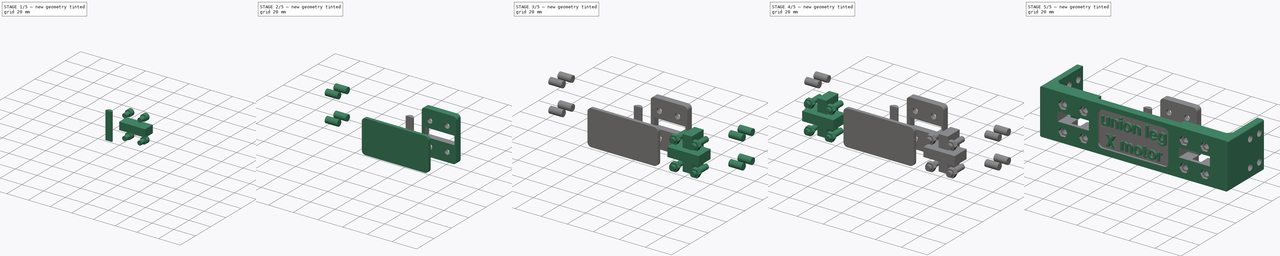
[diagram: build sequence overview — one tinted view per stage of 5, left to right]
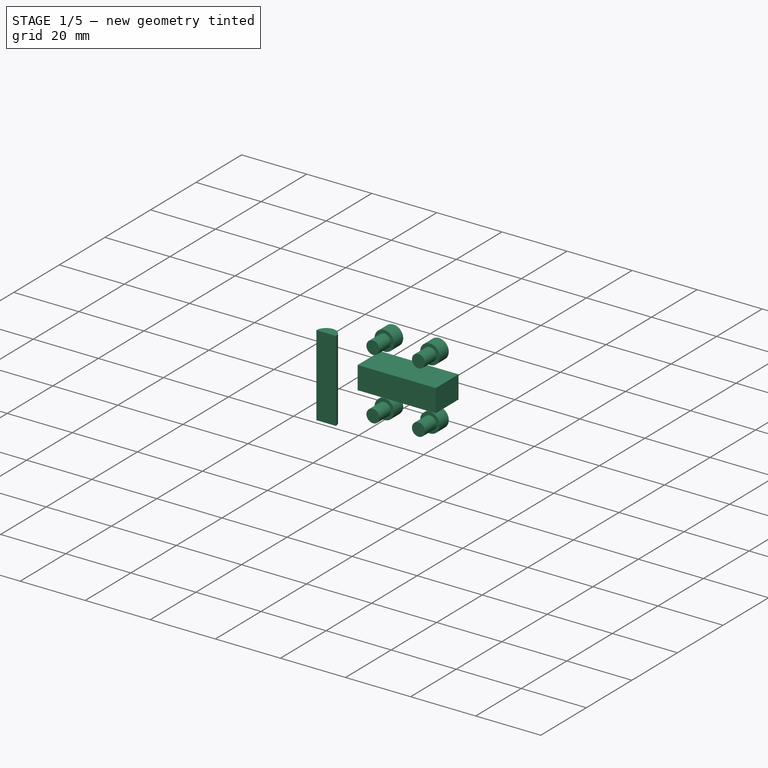
[diagram: stage 1 of 5 — iso view after this stage's code; geometry added in this stage tinted green]
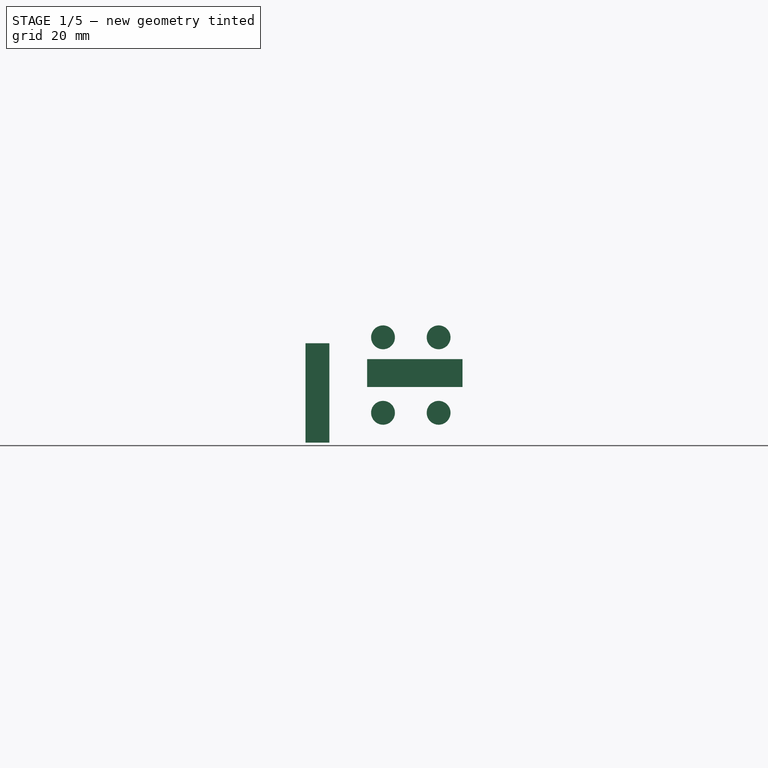
[diagram: stage 1 of 5 — front view after this stage's code; geometry added in this stage tinted green]
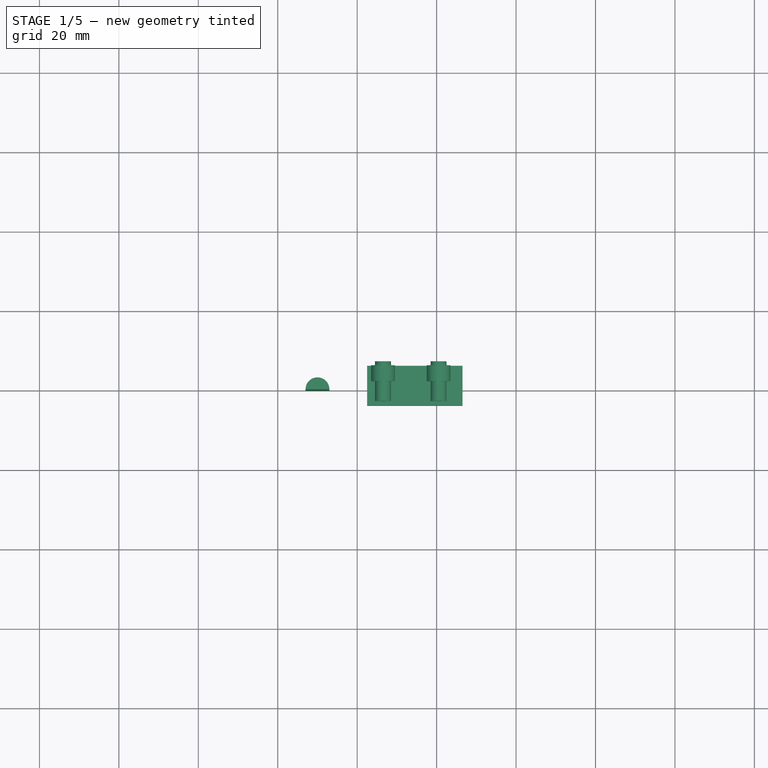
[diagram: stage 1 of 5 — top view after this stage's code; geometry added in this stage tinted green]
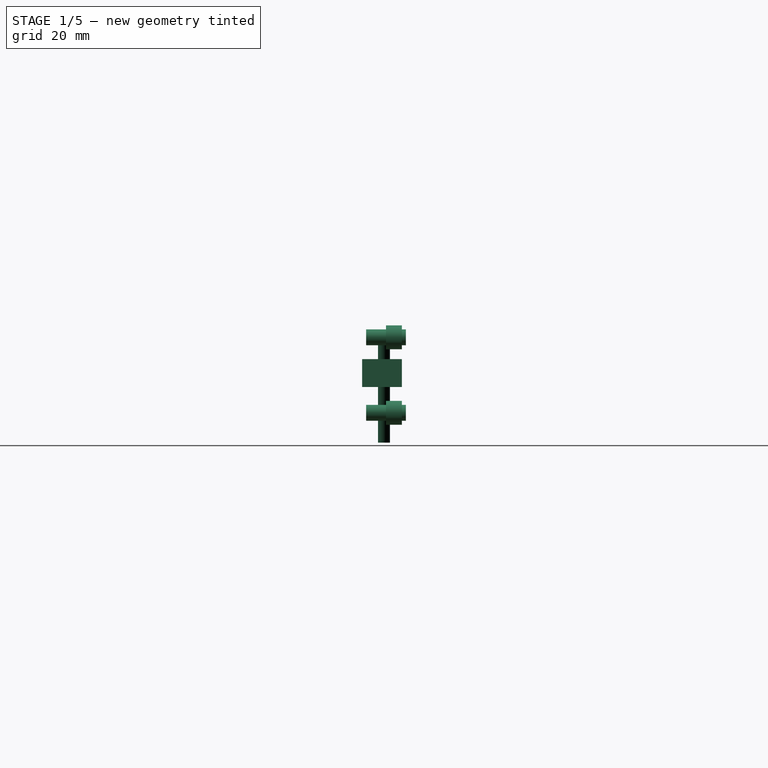
[diagram: stage 1 of 5 — right view after this stage's code; geometry added in this stage tinted green]
FCSTD DOCUMENT  (FreeCAD 0.14R3702 (Git))
Label: union_leg_xmotor
License: CC-BY 3.0
LicenseURL: http://creativecommons.org/licenses/by/3.0/
objects: Part::FeaturePython×8, Part::Box×7, Part::Cylinder×6, Part::MultiFuse×5, Part::Extrusion×4, Part::Fillet×3, Part::Part2DObjectPython×2, Part::Cut×2, Sketcher::SketchObject×1, Part::RegularPolygon×1, Part::Chamfer×1
note: 40 computed .brp shape members not serialized (recipe doc carries the construction recipe); baked Part::Feature solids carry a one-line shape summary decoded from their .brp

FEATURE [Part::Cylinder] Cylinder003  label="Cylinder001"
  Angle = 360
  Height = 10
  Placement = pos=(6.5,7,7.5) rot=(1,0,0;1.5708rad)
  Radius = 2
FEATURE [Part::FeaturePython] Array006  label="h_bolts_tap"  # Draft array (typed FeaturePython)
  Angle = 360
  ArrayType = 0
  Axis = (0,0,1)
  Base = -> Cylinder003
  Center = (0,0,0)
  IntervalX = (14,0,0)
  IntervalY = (0,1,0)
  IntervalZ = (0,0,19)
  NumberPolar = 1
  NumberX = 2
  NumberY = 1
  NumberZ = 2
FEATURE [Part::Box] Box007  label="h_groove_bearing_tap"
  Height = 7
  Length = 24
  Placement = pos=(2.5,-4,14) rot=(0,0,1;0rad)
  Width = 10
FEATURE [Part::Cylinder] Cylinder004  label="Cylinder002"
  Angle = 360
  Height = 4
  Placement = pos=(6.5,6,7.5) rot=(1,0,0;1.5708rad)
  Radius = 3
FEATURE [Part::FeaturePython] Array007  label="h_groove_bolts_tap"  # Draft array (typed FeaturePython)
  Angle = 360
  ArrayType = 0
  Axis = (0,0,1)
  Base = -> Cylinder004
  Center = (0,0,0)
  IntervalX = (14,0,0)
  IntervalY = (0,1,0)
  IntervalZ = (0,0,19)
  NumberPolar = 1
  NumberX = 2
  NumberY = 1
  NumberZ = 2
FEATURE [Part::MultiFuse] Fusion004  label="h_base_tap"
  Shapes = -> [Array007,Array006,Box007]
FEATURE [Part::Cylinder] Cylinder005  label="s_bearing_axis"
  Angle = 180
  Height = 25
  Placement = pos=(-10,0,0) rot=(0,0,1;0rad)
  Radius = 3
note: 2 file-system paths scrubbed to <path> (originals preserved in the JSON sidecar)
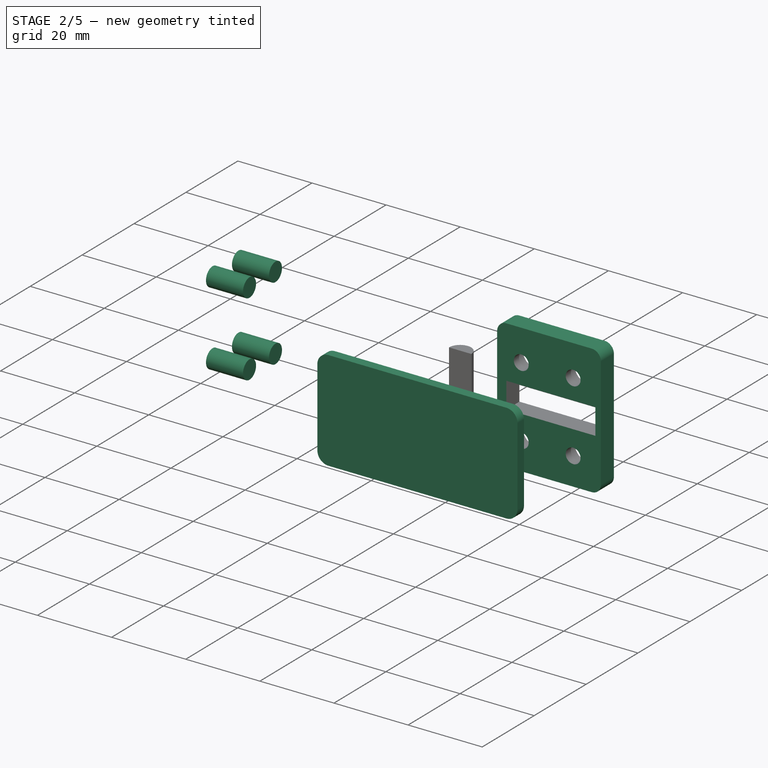
[diagram: stage 2 of 5 — iso view after this stage's code; geometry added in this stage tinted green]
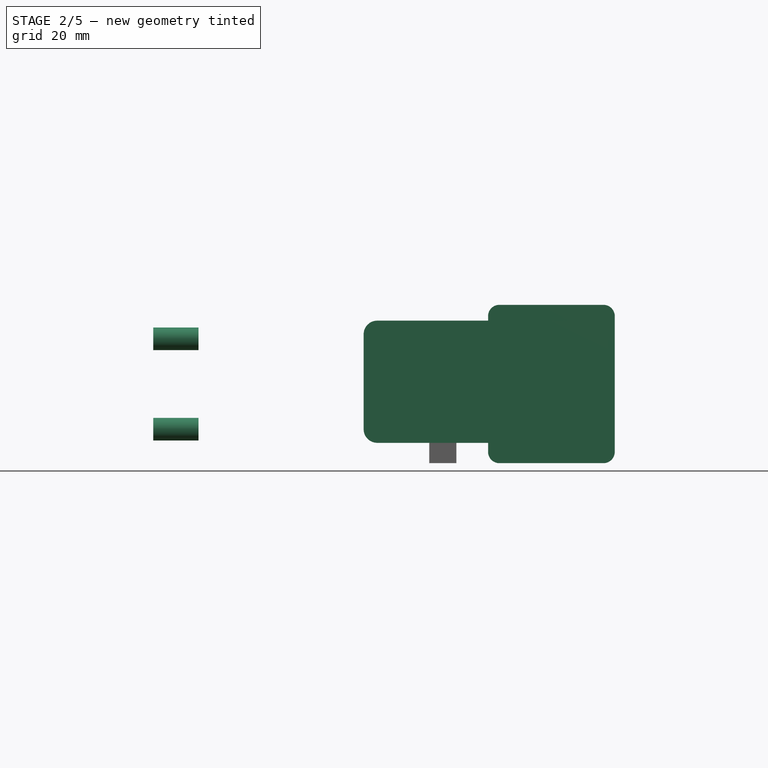
[diagram: stage 2 of 5 — front view after this stage's code; geometry added in this stage tinted green]
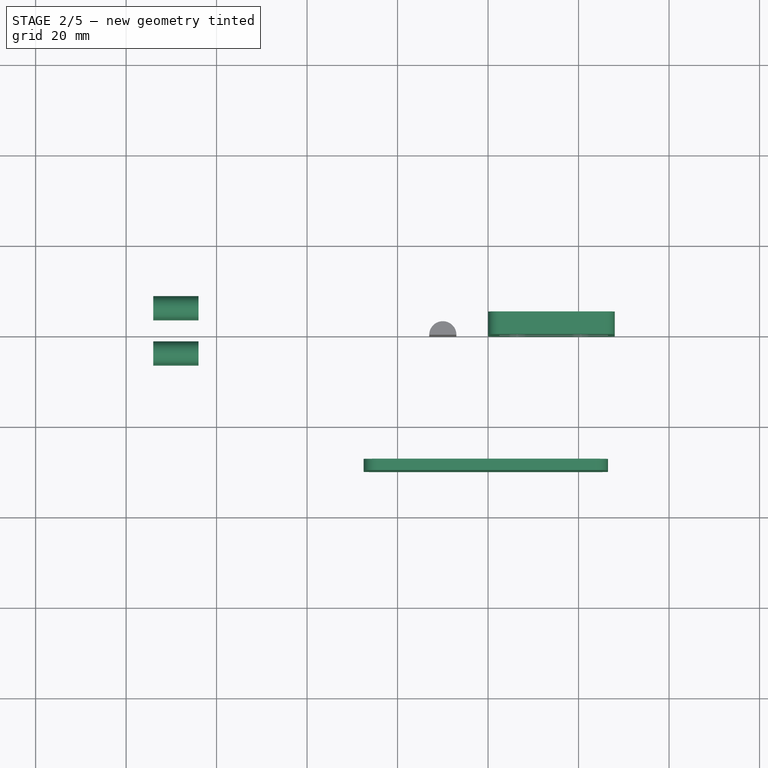
[diagram: stage 2 of 5 — top view after this stage's code; geometry added in this stage tinted green]
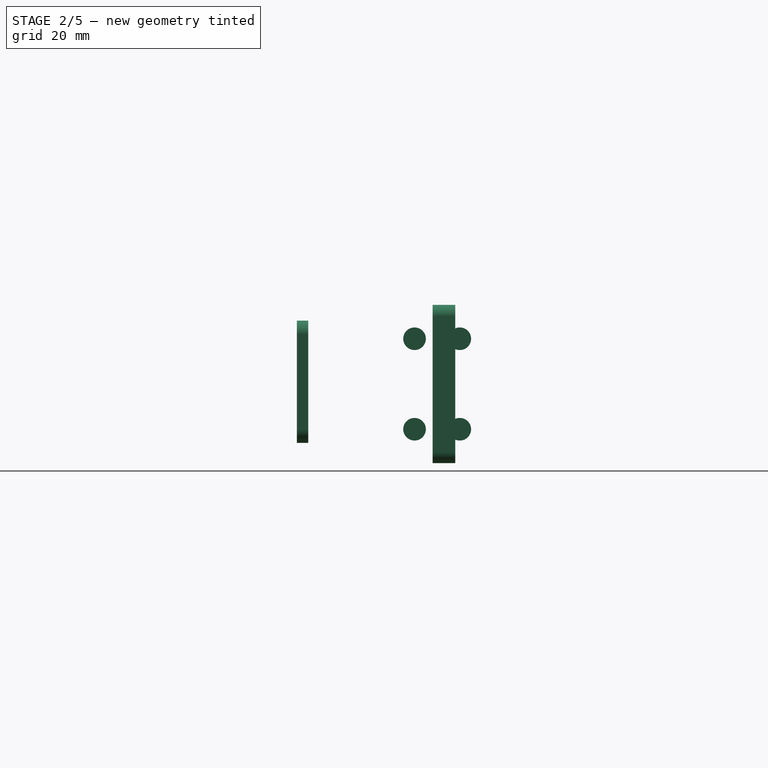
[diagram: stage 2 of 5 — right view after this stage's code; geometry added in this stage tinted green]
FEATURE [Part::Cylinder] Cylinder002  label="h_bolt_union001"
  Angle = 360
  Height = 10
  Placement = pos=(64,6,7.5) rot=(0,1,0;1.5708rad)
  Radius = 2.5
FEATURE [Part::FeaturePython] Array005  label="h_bolt_union_arr001"  # Draft array (typed FeaturePython)
  Angle = 360
  ArrayType = 0
  Axis = (0,0,1)
  Base = -> Cylinder002
  Center = (0,0,0)
  IntervalX = (1,0,0)
  IntervalY = (0,-10,0)
  IntervalZ = (0,0,20)
  NumberPolar = 1
  NumberX = 1
  NumberY = 2
  NumberZ = 2
  Placement = pos=(-138,0,0) rot=(0,0,1;0rad)
FEATURE [Part::Box] Box005  label="Cube"
  Height = 27
  Length = 54
  Placement = pos=(-27.5,-30,4.5) rot=(0,0,1;0rad)
  Width = 2.5
FEATURE [Part::Fillet] Fillet  label="h_txt_groove"
  Base = -> Box005
  Edges = 4 edges r=3: [Edge2,Edge4,Edge6,Edge8]
FEATURE [Part::Box] Box006  label="s_base_tap"
  Height = 35
  Length = 28
  Width = 5
FEATURE [Part::Cut] Cut001
  Base = -> Box006
  Tool = -> Fusion004
FEATURE [Part::Fillet] Fillet002  label="bearing_tap"
  Base = -> Cut001
  Edges = 4 edges r=2.5: [Edge2,Edge4,Edge17,Edge28]
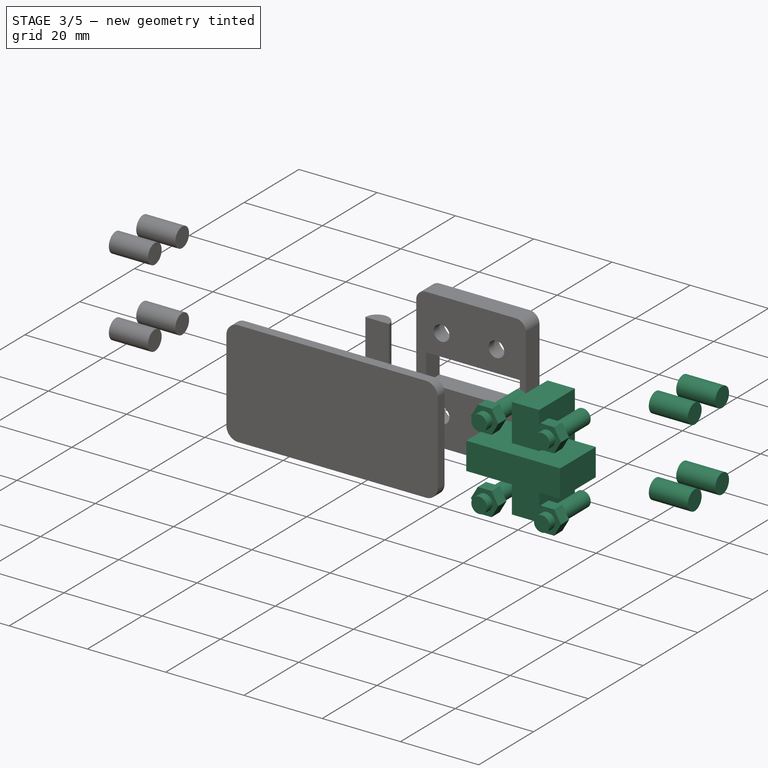
[diagram: stage 3 of 5 — iso view after this stage's code; geometry added in this stage tinted green]
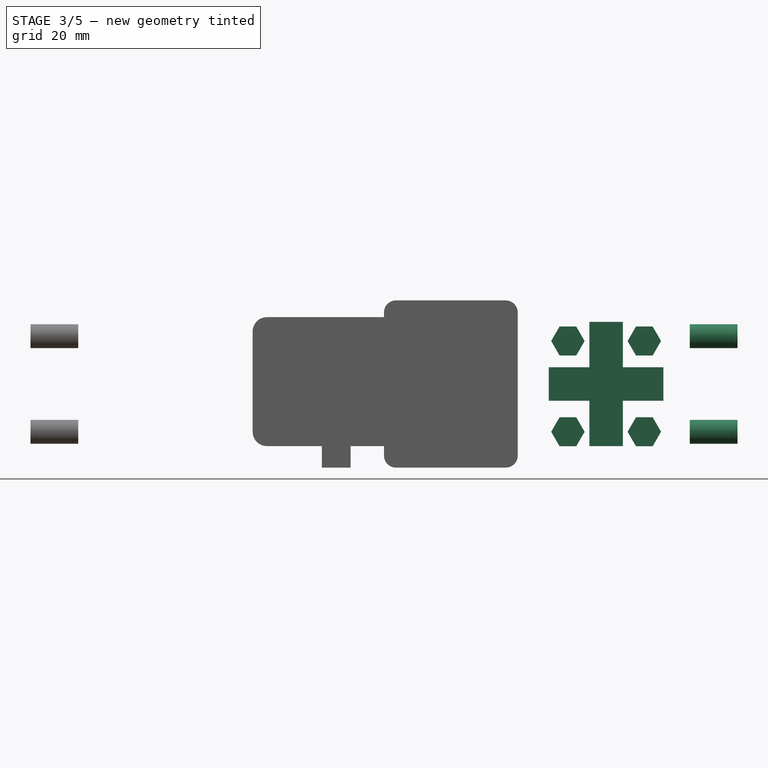
[diagram: stage 3 of 5 — front view after this stage's code; geometry added in this stage tinted green]
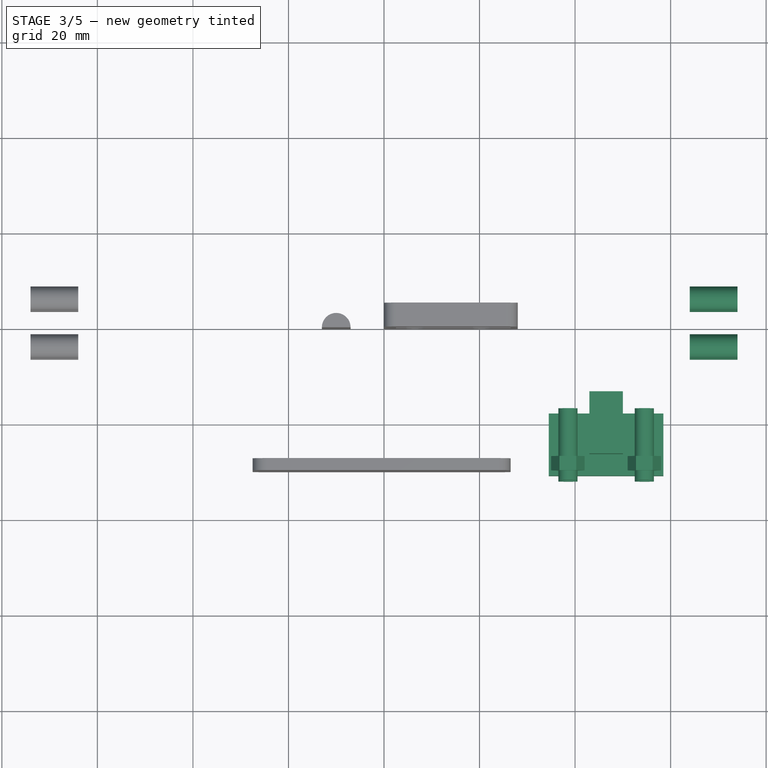
[diagram: stage 3 of 5 — top view after this stage's code; geometry added in this stage tinted green]
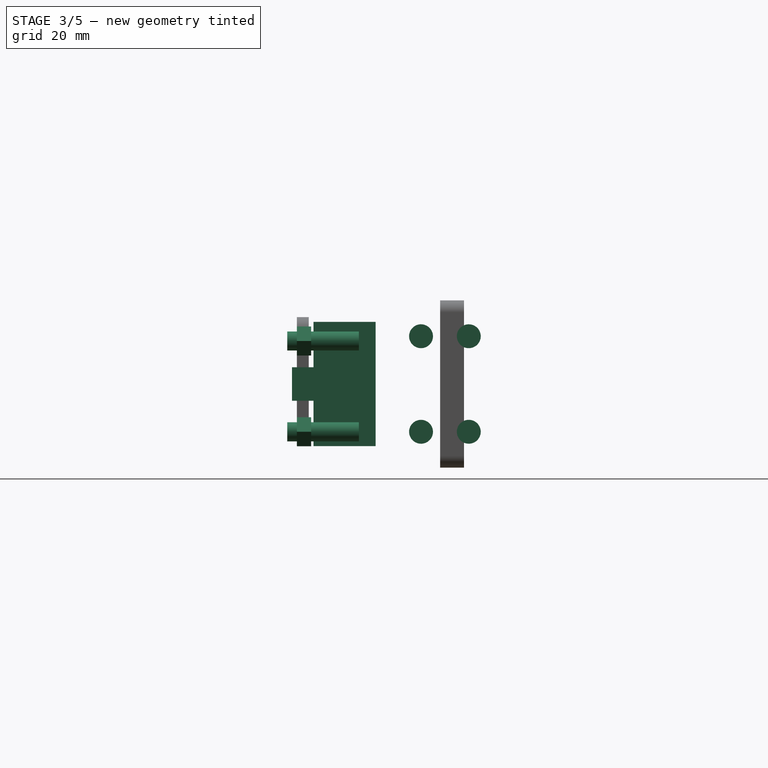
[diagram: stage 3 of 5 — right view after this stage's code; geometry added in this stage tinted green]
FEATURE [Part::Cylinder] Cylinder
  Angle = 360
  Height = 15
  Placement = pos=(38.5,-17,7.5) rot=(1,0,0;1.5708rad)
  Radius = 2
FEATURE [Part::RegularPolygon] RegularPolygon001  label="Regular polygon001"
  Circumradius = 3.5
  Placement = pos=(38.5,-30,7.5) rot=(1,0,0;1.5708rad)
  Polygon = 6
FEATURE [Part::Extrusion] Extrude002  label="h_nut_bearing"
  Base = -> RegularPolygon001
  Dir = (0,3,0)
  Solid = true
FEATURE [Part::Box] Box  label="h_bearing004"
  Height = 7
  Length = 24
  Placement = pos=(34.5,-31,14) rot=(0,0,1;0rad)
  Width = 13
FEATURE [Part::Box] Box004  label="h_bearing005"
  Height = 7
  Length = 26
  Placement = pos=(43,-26.5,30.5) rot=(0,1,0;1.5708rad)
  Width = 13
FEATURE [Part::FeaturePython] Array002  label="h_bolts_bearing002"  # Draft array (typed FeaturePython)
  Angle = 360
  ArrayType = 0
  Axis = (0,0,1)
  Base = -> Cylinder
  Center = (0,0,0)
  IntervalX = (16,0,0)
  IntervalY = (0,1,0)
  IntervalZ = (0,0,19)
  NumberPolar = 1
  NumberX = 2
  NumberY = 1
  NumberZ = 2
FEATURE [Part::FeaturePython] Array003  label="h_nut001"  # Draft array (typed FeaturePython)
  Angle = 360
  ArrayType = 0
  Axis = (0,0,1)
  Base = -> Extrude002
  Center = (0,0,0)
  IntervalX = (16,0,0)
  IntervalY = (0,1,0)
  IntervalZ = (0,0,19)
  NumberPolar = 1
  NumberX = 2
  NumberY = 1
  NumberZ = 2
FEATURE [Part::Cylinder] Cylinder001  label="h_bolt_union"
  Angle = 360
  Height = 10
  Placement = pos=(64,6,7.5) rot=(0,1,0;1.5708rad)
  Radius = 2.5
FEATURE [Part::FeaturePython] Array004  label="h_bolt_union_arr"  # Draft array (typed FeaturePython)
  Angle = 360
  ArrayType = 0
  Axis = (0,0,1)
  Base = -> Cylinder001
  Center = (0,0,0)
  IntervalX = (1,0,0)
  IntervalY = (0,-10,0)
  IntervalZ = (0,0,20)
  NumberPolar = 1
  NumberX = 1
  NumberY = 2
  NumberZ = 2
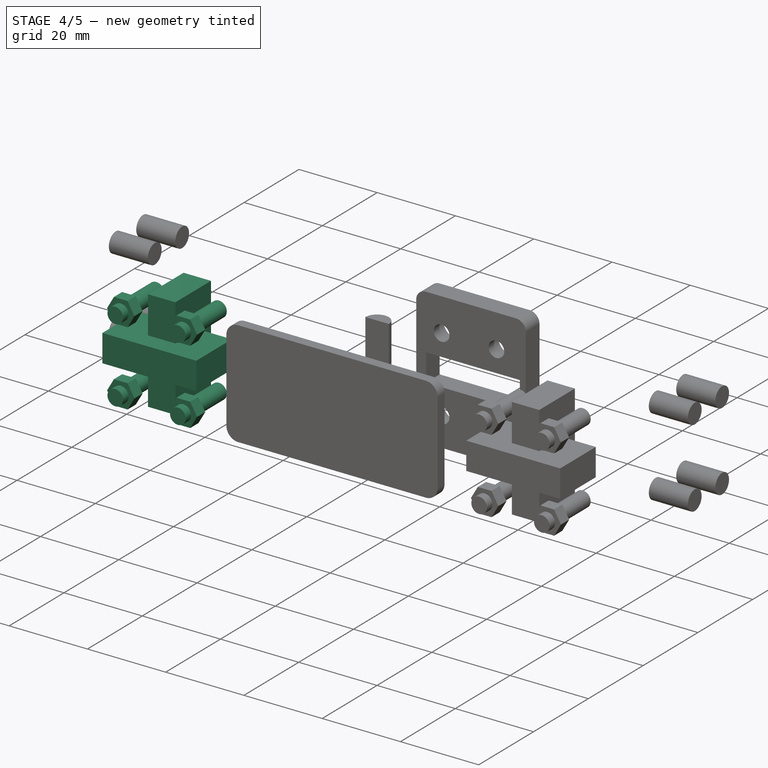
[diagram: stage 4 of 5 — iso view after this stage's code; geometry added in this stage tinted green]
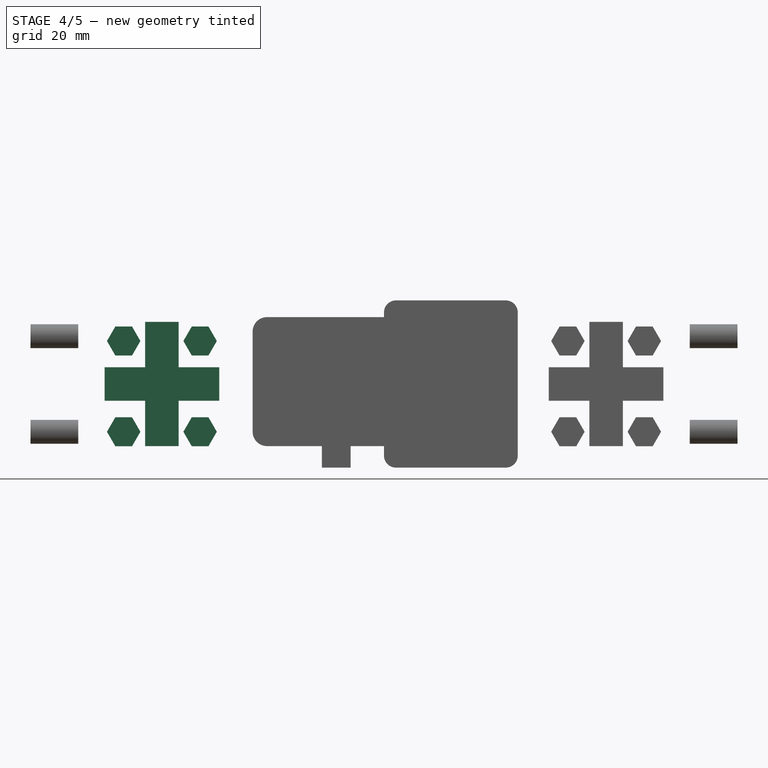
[diagram: stage 4 of 5 — front view after this stage's code; geometry added in this stage tinted green]
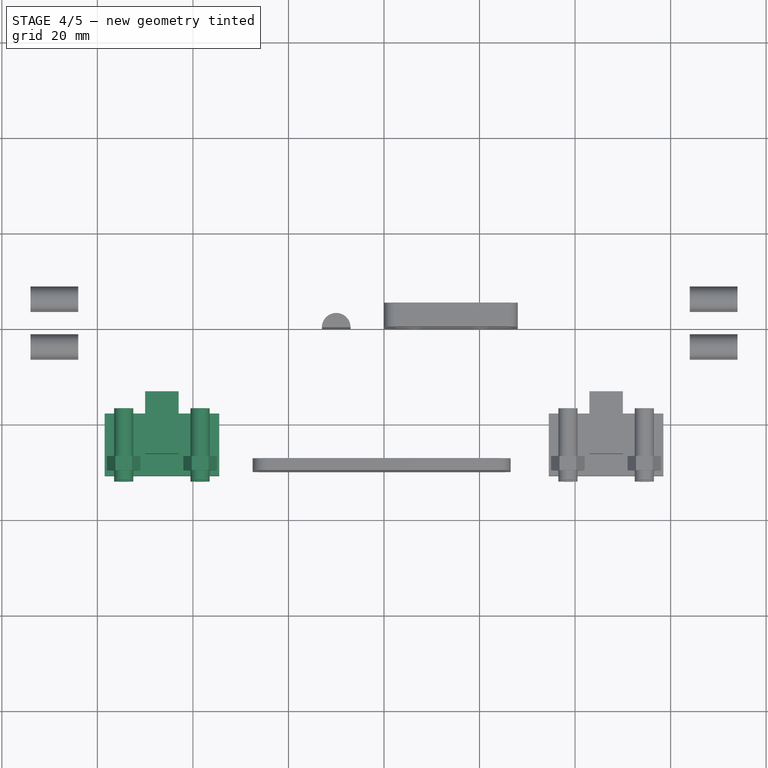
[diagram: stage 4 of 5 — top view after this stage's code; geometry added in this stage tinted green]
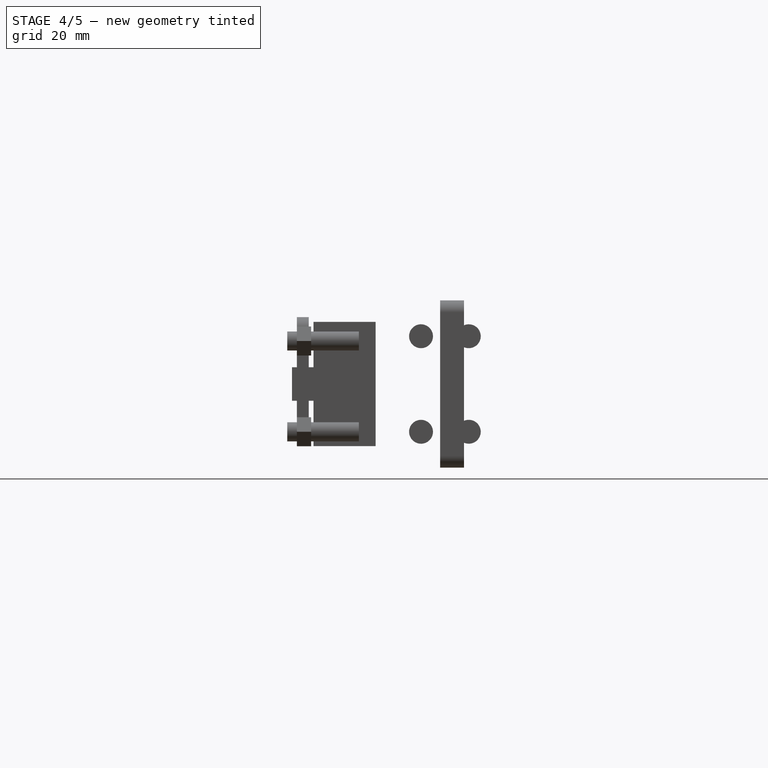
[diagram: stage 4 of 5 — right view after this stage's code; geometry added in this stage tinted green]
FEATURE [Part::Box] Box002  label="h_bearing002"
  Height = 7
  Length = 26
  Placement = pos=(43,-26.5,30.5) rot=(0,1,0;1.5708rad)
  Width = 13
FEATURE [Part::Box] Box003  label="h_bearing003"
  Height = 7
  Length = 24
  Placement = pos=(34.5,-31,14) rot=(0,0,1;0rad)
  Width = 13
FEATURE [Part::FeaturePython] Array001  label="h_bolts_bearing001"  # Draft array (typed FeaturePython)
  Angle = 360
  ArrayType = 0
  Axis = (0,0,1)
  Base = -> Cylinder
  Center = (0,0,0)
  IntervalX = (16,0,0)
  IntervalY = (0,1,0)
  IntervalZ = (0,0,19)
  NumberPolar = 1
  NumberX = 2
  NumberY = 1
  NumberZ = 2
FEATURE [Part::FeaturePython] Array  label="h_nut"  # Draft array (typed FeaturePython)
  Angle = 360
  ArrayType = 0
  Axis = (0,0,1)
  Base = -> Extrude002
  Center = (0,0,0)
  IntervalX = (16,0,0)
  IntervalY = (0,1,0)
  IntervalZ = (0,0,19)
  NumberPolar = 1
  NumberX = 2
  NumberY = 1
  NumberZ = 2
FEATURE [Part::MultiFuse] Fusion  label="h_bearing_r"
  Shapes = -> [Array,Array001,Box002,Box003]
FEATURE [Part::MultiFuse] Fusion001  label="h_bearing_r001"
  Placement = pos=(-93,0,0) rot=(0,0,1;0rad)
  Shapes = -> [Array003,Array002,Box004,Box]
FEATURE [Part::MultiFuse] Fusion002  label="holes"
  Shapes = -> [Fillet,Array004,Array005,Fusion001,Fusion]
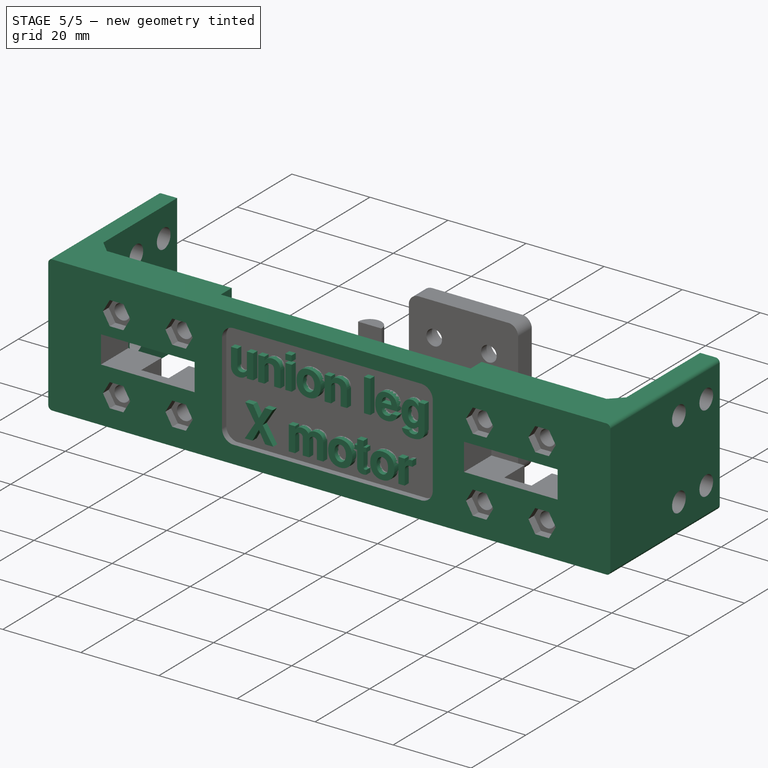
[diagram: stage 5 of 5 — iso view after this stage's code; geometry added in this stage tinted green]
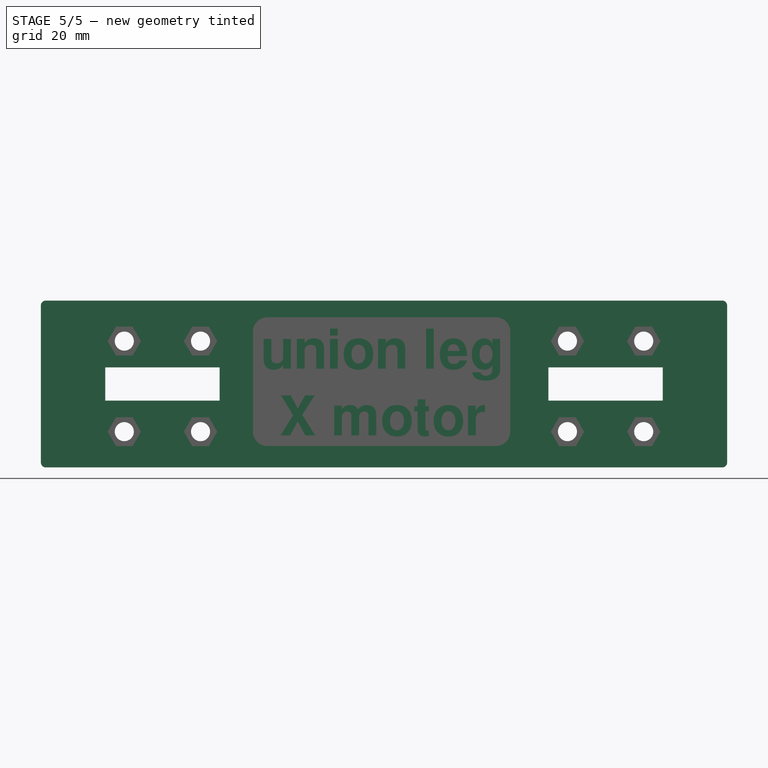
[diagram: stage 5 of 5 — front view after this stage's code; geometry added in this stage tinted green]
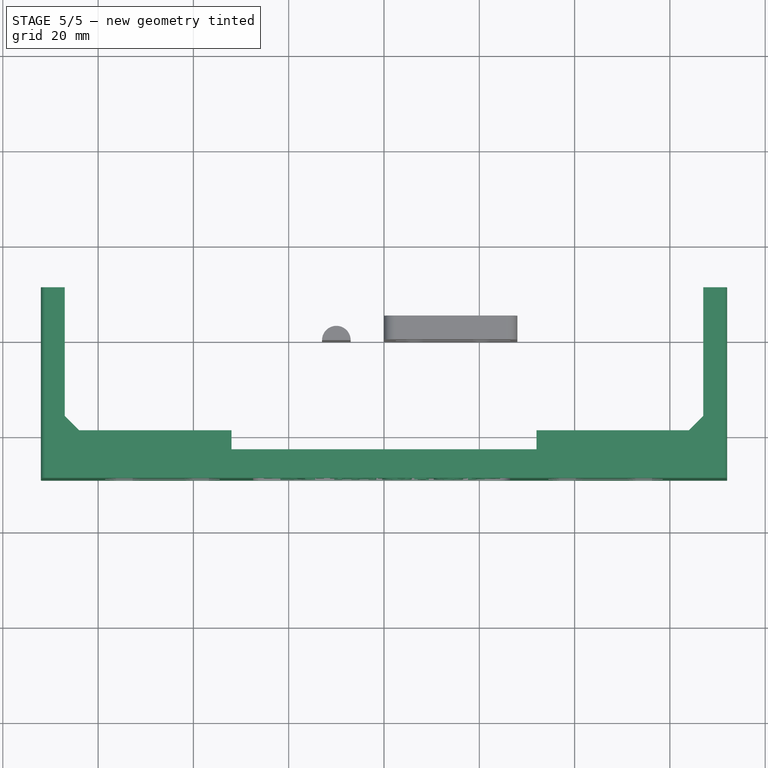
[diagram: stage 5 of 5 — top view after this stage's code; geometry added in this stage tinted green]
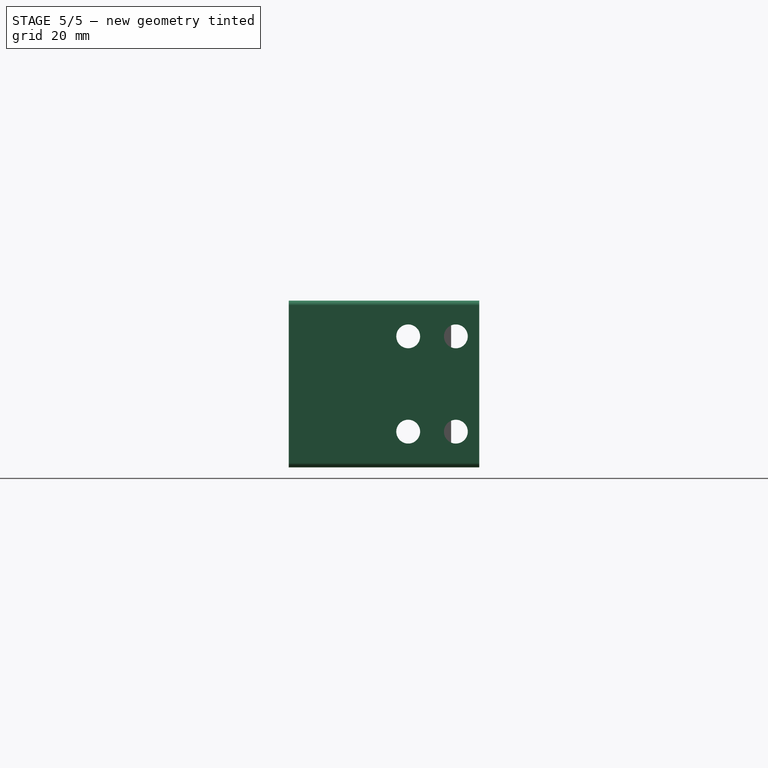
[diagram: stage 5 of 5 — right view after this stage's code; geometry added in this stage tinted green]
FEATURE [Sketcher::SketchObject] Sketch
  sketch-geometry (12):
    g0: LineSegment StartX=-72 StartY=10.9212 StartZ=0 EndX=-67 EndY=10.9212 EndZ=0
    g1: LineSegment StartX=-67 StartY=10.9212 StartZ=0 EndX=-67 EndY=-19.0788 EndZ=0
    g2: LineSegment StartX=-67 StartY=-19.0788 StartZ=0 EndX=-32 EndY=-19.0788 EndZ=0
    g3: LineSegment StartX=-32 StartY=-19.0788 StartZ=0 EndX=-32 EndY=-23.0788 EndZ=0
    g4: LineSegment StartX=-32 StartY=-23.0788 StartZ=0 EndX=32 EndY=-23.0788 EndZ=0
    g5: LineSegment StartX=32 StartY=-23.0788 StartZ=0 EndX=32 EndY=-19.0788 EndZ=0
    g6: LineSegment StartX=32 StartY=-19.0788 StartZ=0 EndX=67 EndY=-19.0788 EndZ=0
    g7: LineSegment StartX=67 StartY=-19.0788 StartZ=0 EndX=67 EndY=10.9212 EndZ=0
    g8: LineSegment StartX=67 StartY=10.9212 StartZ=0 EndX=72 EndY=10.9212 EndZ=0
    g9: LineSegment StartX=72 StartY=10.9212 StartZ=0 EndX=72 EndY=-29.0788 EndZ=0
    g10: LineSegment StartX=72 StartY=-29.0788 StartZ=0 EndX=-72 EndY=-29.0788 EndZ=0
    g11: LineSegment StartX=-72 StartY=-29.0788 StartZ=0 EndX=-72 EndY=10.9212 EndZ=0
  constraints (34):
    c: Coincident(g0,g1)
    c: Vertical(g1)
    c: Coincident(g1,g2)
    c: Coincident(g2,g3)
    c: Coincident(g3,g4)
    c: Horizontal(g4)
    c: Coincident(g4,g5)
    c: Vertical(g5)
    c: Coincident(g5,g6)
    c: Horizontal(g6)
    c: Coincident(g6,g7)
    c: Vertical(g7)
    c: Coincident(g7,g8)
    c: Horizontal(g8)
    c: Coincident(g8,g9)
    c: Coincident(g9,g10)
    c: Horizontal(g10)
    c: Coincident(g10,g11)
    c: Coincident(g11,g0)
    c: Symmetric(g0,g8,g-2)
    c: Vertical(g9)
    c: Vertical(g11)
    c: Vertical(g3)
    c: Horizontal(g2)
    c: Horizontal(g0)
    c: Symmetric(g3,g4,g-2)
    c: Symmetric(g2,g5,g-2)
    c: Symmetric(g0,g7,g-2)
    c: DistanceX(g10) = -144
    c: DistanceX(g0) = 5
    c: DistanceX(g2) = 35
    c: DistanceY(g7) = 30
    c: DistanceY(g9) = -40
    c: DistanceY(g5) = 4
FEATURE [Part::Extrusion] Extrude001  label="s_base"
  Base = -> Sketch
  Dir = (0,0,35)
  Solid = true
FEATURE [Part::Part2DObjectPython] ShapeString  # Draft 2D object (typed FeaturePython)
  FontFile = <path>
  Placement = pos=(-25.972,-29,20.7218) rot=(1,0,0;1.5708rad)
  Size = 4.5
  String = union leg
  Tracking = 0
FEATURE [Part::Part2DObjectPython] ShapeString001  # Draft 2D object (typed FeaturePython)
  FontFile = <path>
  Placement = pos=(-21.972,-29,6.7218) rot=(1,0,0;1.5708rad)
  Size = 4.5
  String = X motor
  Tracking = 0
FEATURE [Part::Extrusion] Extrude003  label="s_txt_1"
  Base = -> ShapeString001
  Dir = (0,1.5,0)
  Solid = true
FEATURE [Part::Extrusion] Extrude  label="s_txt_2"
  Base = -> ShapeString
  Dir = (0,1.5,0)
  Solid = true
FEATURE [Part::Cut] Cut
  Base = -> Extrude001
  Tool = -> Fusion002
FEATURE [Part::MultiFuse] Fusion003
  Shapes = -> [Extrude003,Extrude,Cut]
FEATURE [Part::Fillet] Fillet001  label="union_leg_x_motor"
  Base = -> Fusion003
  Edges = 4 edges r=1: [Edge665,Edge666,Edge680,Edge690]
FEATURE [Part::Chamfer] Chamfer  label="union_leg_xmotor"
  Base = -> Fillet001
  Edges = 2 edges r=3: [Edge267,Edge285]
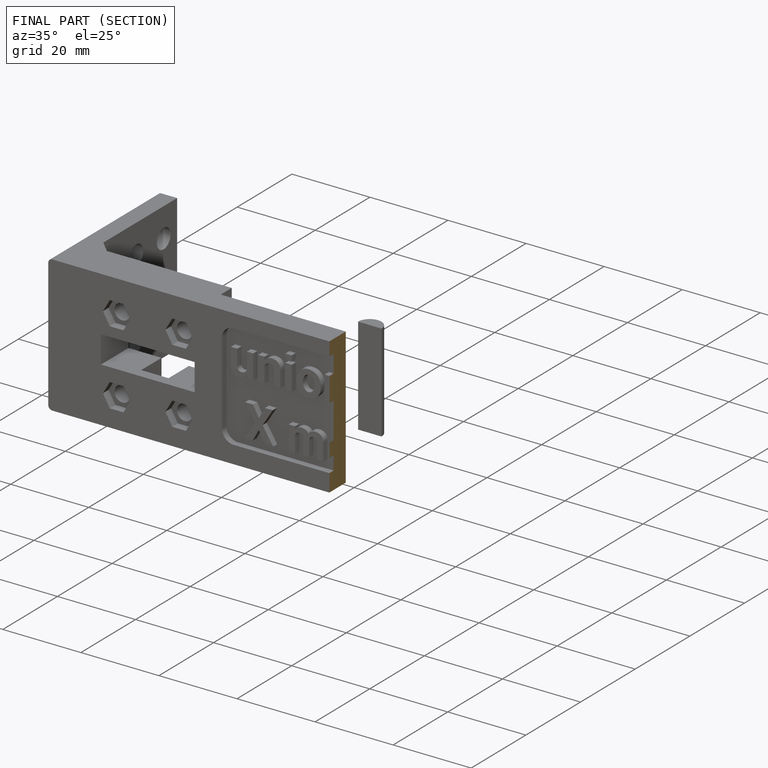
[diagram: finished part — half-section view (interior)]
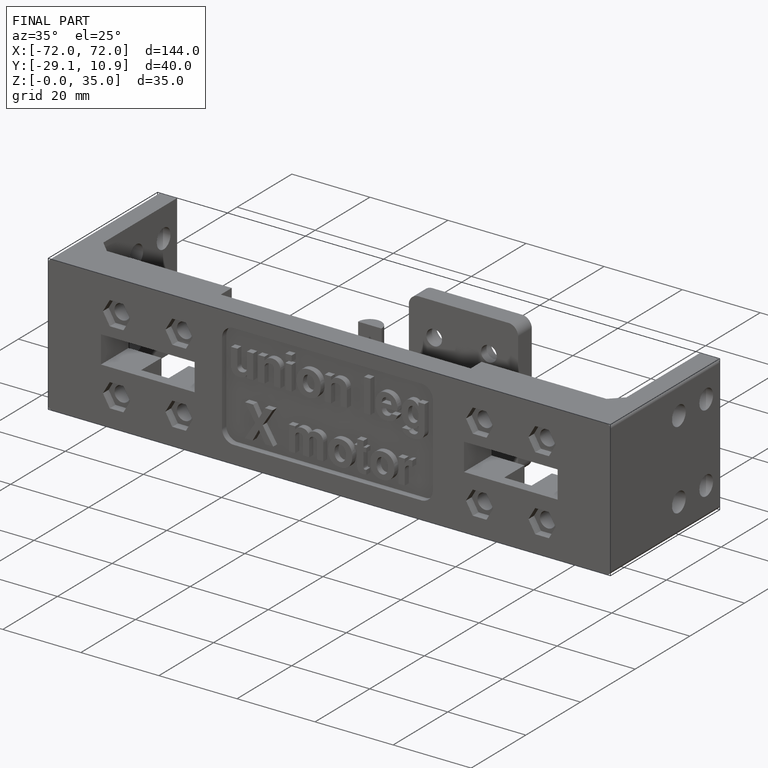
[diagram: finished part — iso view with bounding-box wireframe]
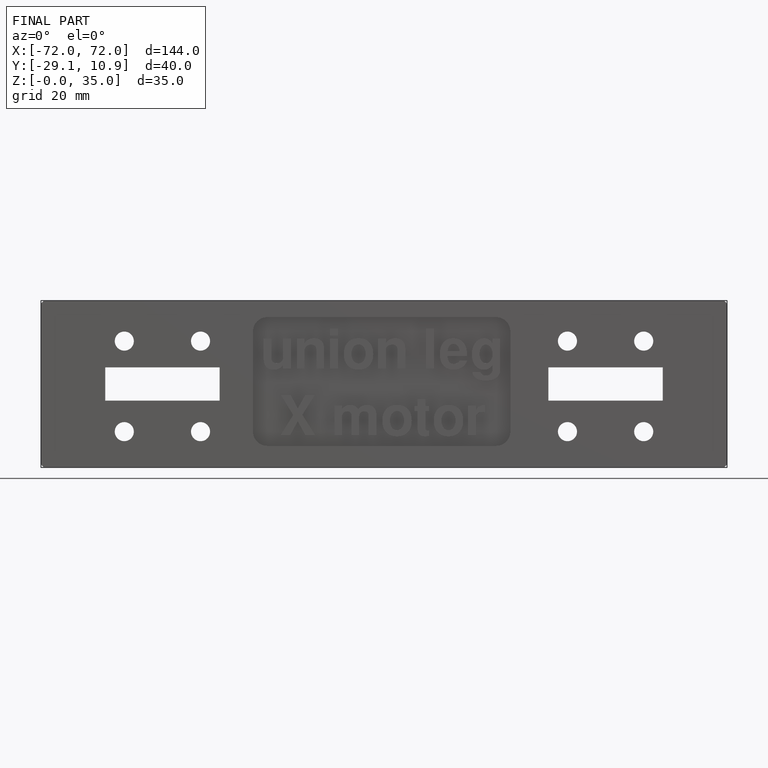
[diagram: finished part — front view with bounding-box wireframe]
